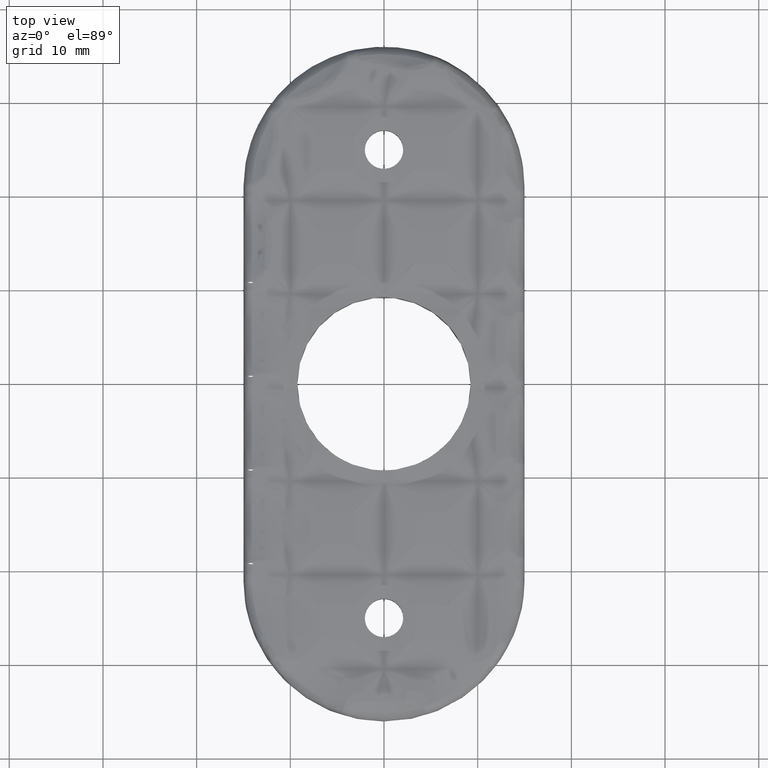
[diagram: clean part render]
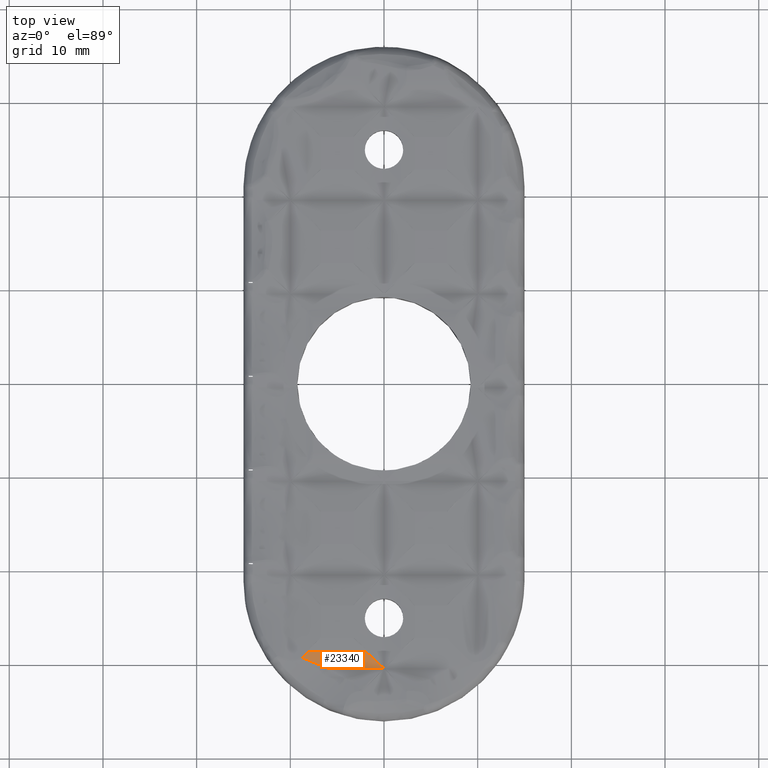
[diagram: same view with one face highlighted and labeled with its STEP entity id]
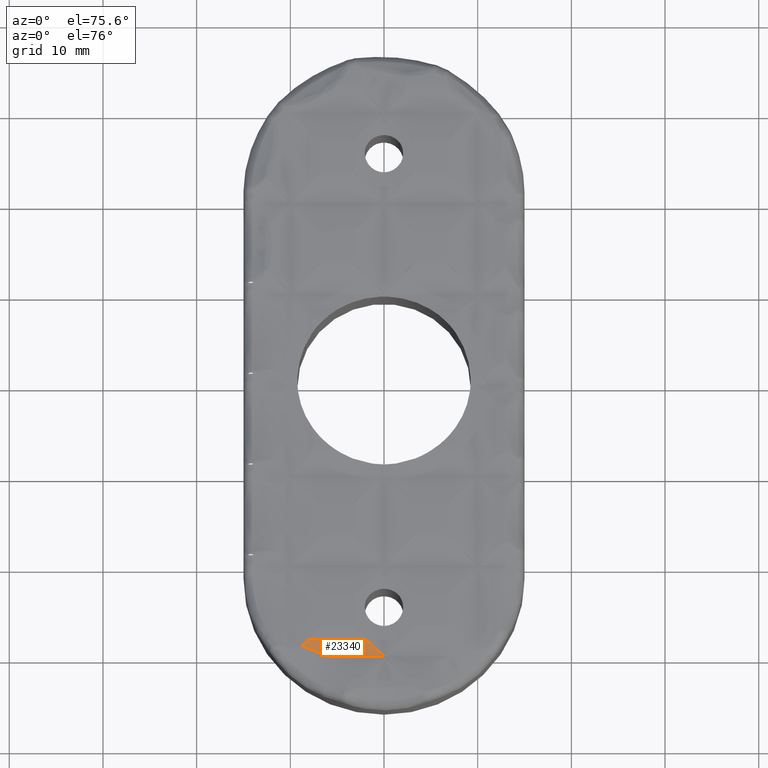
[diagram: same view with one face highlighted and labeled with its STEP entity id]
A machine part, top view. The second image highlights one B-rep face of the part: STEP entity #23340.
A second angle (auxiliary view) of the same face is appended — the face is thin or edge-on in the first view.
In plain terms, the highlighted cylindrical surface (partial cylindrical patch) has radius 11.5625 mm, axis along (1, 0, 0).
Its self-contained STEP definition (entity closure, byte-faithful):
#217 = VECTOR ( 'NONE', #4067, 1000.000000000000000 ) ;
#381 = DIRECTION ( 'NONE',  ( 1.000000000000000000, 0.0000000000000000000, 0.0000000000000000000 ) ) ;
#839 = CARTESIAN_POINT ( 'NONE',  ( -8.751393372473105000, -29.23398105411578700, 3.307253150990484800 ) ) ;
#1402 = CARTESIAN_POINT ( 'NONE',  ( -1.276549066833050600, -29.20826286275892900, 3.294858551024550900 ) ) ;
#2161 = LINE ( 'NONE', #18663, #217 ) ;
#2400 = EDGE_CURVE ( 'NONE', #3360, #23105, #20958, .T. ) ;
#3316 = CARTESIAN_POINT ( 'NONE',  ( -8.751393372473105000, -29.23398105411578700, 3.307253150990484800 ) ) ;
#3360 = VERTEX_POINT ( 'NONE', #3602 ) ;
#3462 = CARTESIAN_POINT ( 'NONE',  ( -1.907431863475003400, -28.62759959221222800, 3.384057971014495300 ) ) ;
#3602 = CARTESIAN_POINT ( 'NONE',  ( -5.995962801157327600, -30.38319608335592600, 3.250002399825249200 ) ) ;
#4067 = DIRECTION ( 'NONE',  ( 1.000000000000000000, 0.0000000000000000000, 0.0000000000000000000 ) ) ;
#4910 = B_SPLINE_CURVE_WITH_KNOTS ( 'NONE', 3,
 ( #15960, #1402, #18073, #5575 ),
 .UNSPECIFIED., .F., .F.,
 ( 4, 4 ),
 ( 0.0000000000000000000, 1.000000000000000000 ),
 .UNSPECIFIED. ) ;
#5575 = CARTESIAN_POINT ( 'NONE',  ( 4.117118711117606400E-015, -30.38319608347029500, 3.250000000000002700 ) ) ;
#6497 = DIRECTION ( 'NONE',  ( 0.0000000000000000000, 0.0000000000000000000, -1.000000000000000000 ) ) ;
#6900 = ORIENTED_EDGE ( 'NONE', *, *, #18441, .F. ) ;
#7152 = B_SPLINE_CURVE_WITH_KNOTS ( 'NONE', 3,
 ( #7911, #7997, #22608, #10115 ),
 .UNSPECIFIED., .F., .F.,
 ( 4, 4 ),
 ( 0.0000000000000000000, 1.000000000000000000 ),
 .UNSPECIFIED. ) ;
#7519 = VERTEX_POINT ( 'NONE', #3462 ) ;
#7911 = CARTESIAN_POINT ( 'NONE',  ( -8.751393372473105000, -29.23398105411578700, 3.307253150990484800 ) ) ;
#7997 = CARTESIAN_POINT ( 'NONE',  ( -8.531100773230985400, -29.03122415833423600, 3.327505499346372200 ) ) ;
#8102 = EDGE_CURVE ( 'NONE', #24740, #7519, #2161, .T. ) ;
#9119 = CARTESIAN_POINT ( 'NONE',  ( -6.853977737144362900, -29.95352723006721300, 3.256345459354756900 ) ) ;
#9957 = VERTEX_POINT ( 'NONE', #10542 ) ;
#10115 = CARTESIAN_POINT ( 'NONE',  ( -8.092568136525027700, -28.62759959221223800, 3.384057971014494000 ) ) ;
#10542 = CARTESIAN_POINT ( 'NONE',  ( 4.117118711117606400E-015, -30.38319608347029500, 3.250000000000002700 ) ) ;
#10963 = EDGE_LOOP ( 'NONE', ( #25785, #11207, #13737, #25748, #6900 ) ) ;
#11194 = CARTESIAN_POINT ( 'NONE',  ( -5.995962801157327600, -30.38319608335592600, 3.250002399825249200 ) ) ;
#11207 = ORIENTED_EDGE ( 'NONE', *, *, #19657, .T. ) ;
#13321 = CARTESIAN_POINT ( 'NONE',  ( -8.241770988740290300, -29.38592921546601400, 3.292073232536021400 ) ) ;
#13737 = ORIENTED_EDGE ( 'NONE', *, *, #24032, .F. ) ;
#15960 = CARTESIAN_POINT ( 'NONE',  ( -1.907431863475003400, -28.62759959221222800, 3.384057971014495300 ) ) ;
#16247 = LINE ( 'NONE', #23324, #22481 ) ;
#16704 = CARTESIAN_POINT ( 'NONE',  ( -15.00000000000000000, -30.38319608347029500, 14.81250000000000000 ) ) ;
#18073 = CARTESIAN_POINT ( 'NONE',  ( -0.6382848164913377300, -29.79572000858797100, 3.250000000000003600 ) ) ;
#18441 = EDGE_CURVE ( 'NONE', #23105, #24740, #7152, .T. ) ;
#18663 = CARTESIAN_POINT ( 'NONE',  ( -15.00000000000000000, -28.62759959221223500, 3.384057971014495800 ) ) ;
#19012 = DIRECTION ( 'NONE',  ( 1.000000000000000000, 0.0000000000000000000, 0.0000000000000000000 ) ) ;
#19657 = EDGE_CURVE ( 'NONE', #3360, #9957, #16247, .T. ) ;
#20958 = B_SPLINE_CURVE_WITH_KNOTS ( 'NONE', 3,
 ( #11194, #23727, #9119, #25814, #13321, #839 ),
 .UNSPECIFIED., .F., .F.,
 ( 4, 2, 4 ),
 ( 0.0000000000000000000, 0.5000000000000000000, 1.000000000000000000 ),
 .UNSPECIFIED. ) ;
#21488 = CARTESIAN_POINT ( 'NONE',  ( -8.092568136525027700, -28.62759959221223800, 3.384057971014494000 ) ) ;
#22481 = VECTOR ( 'NONE', #381, 1000.000000000000000 ) ;
#22608 = CARTESIAN_POINT ( 'NONE',  ( -8.311390098777474500, -28.82900289080336600, 3.353119114831160100 ) ) ;
#22906 = AXIS2_PLACEMENT_3D ( 'NONE', #16704, #19012, #6497 ) ;
#23105 = VERTEX_POINT ( 'NONE', #3316 ) ;
#23324 = CARTESIAN_POINT ( 'NONE',  ( -15.00000000000000000, -30.38319608347029500, 3.250000000000002700 ) ) ;
#23340 = ADVANCED_FACE ( 'NONE', ( #26268 ), #25624, .F. ) ;
#23727 = CARTESIAN_POINT ( 'NONE',  ( -6.416428717373871200, -30.16415970676519400, 3.249972623932416000 ) ) ;
#24032 = EDGE_CURVE ( 'NONE', #7519, #9957, #4910, .T. ) ;
#24740 = VERTEX_POINT ( 'NONE', #21488 ) ;
#25624 = CYLINDRICAL_SURFACE ( 'NONE', #22906, 11.56249999999999600 ) ;
#25748 = ORIENTED_EDGE ( 'NONE', *, *, #8102, .F. ) ;
#25785 = ORIENTED_EDGE ( 'NONE', *, *, #2400, .F. ) ;
#25814 = CARTESIAN_POINT ( 'NONE',  ( -7.766503278547704200, -29.56495764987733900, 3.277349958090701500 ) ) ;
#26268 = FACE_OUTER_BOUND ( 'NONE', #10963, .T. ) ;